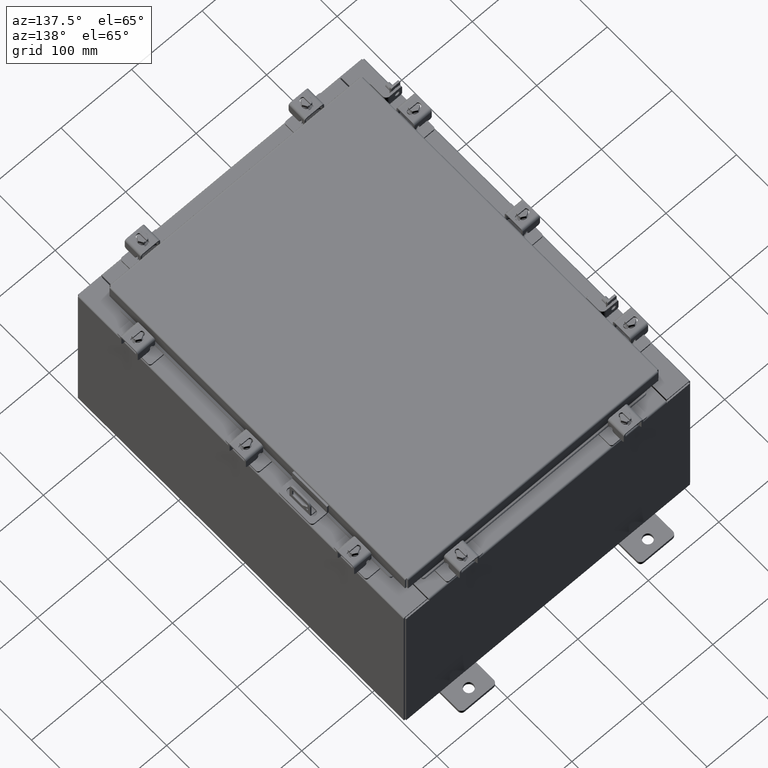
[diagram: clean part render]
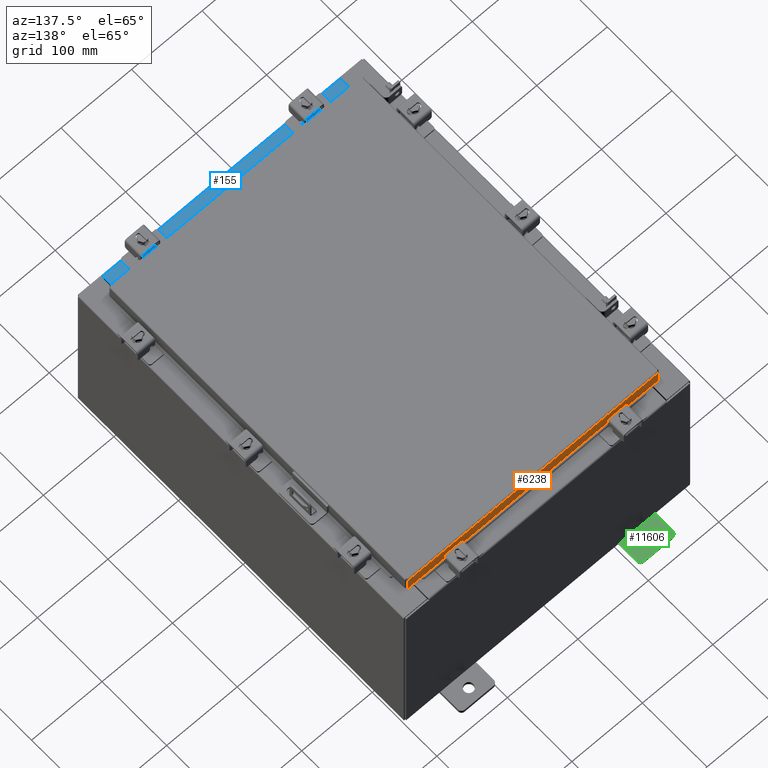
[diagram: same view with three faces highlighted in distinct colors, each labeled with its STEP entity id]
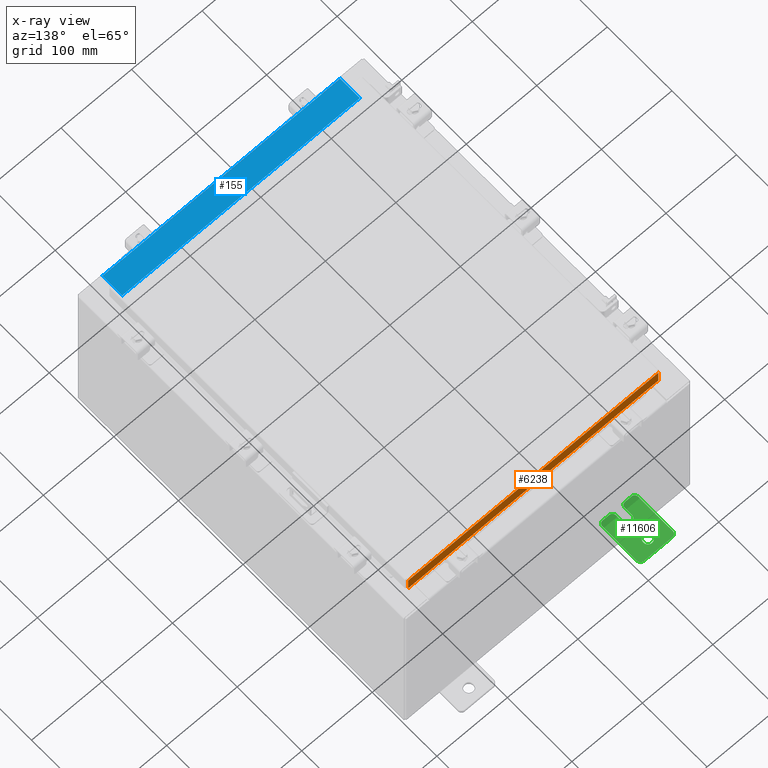
[diagram: x-ray of the same camera — body ghosted, the three highlighted faces saturated]
A machine part, auxiliary view with three faces highlighted in distinct colors.
The next image is the same camera in x-ray (body ghosted, the three faces saturated) — at least one of them is partly hidden behind the body in this view.
Their STEP definitions:

[orange] entity #6238 — the highlighted planar face has unit normal (0, -1, -0).
#434 = VECTOR ( 'NONE', #7094, 39.37007874015748100 ) ;
#801 = CARTESIAN_POINT ( 'NONE',  ( 6.239157864376261700, 9.093999999999999400, -0.8500000000000018700 ) ) ;
#838 = AXIS2_PLACEMENT_3D ( 'NONE', #1003, #4486, #16682 ) ;
#1003 = CARTESIAN_POINT ( 'NONE',  ( -3.215592570974071400E-030, 9.093999999999995900, 2.589571694958335700E-014 ) ) ;
#1096 = CARTESIAN_POINT ( 'NONE',  ( -6.239157864376272400, 9.093999999999999400, -0.8500000000000018700 ) ) ;
#2798 = DIRECTION ( 'NONE',  ( 1.000000000000000000, 4.379057701015054300E-047, 1.254380613084043100E-016 ) ) ;
#2841 = DIRECTION ( 'NONE',  ( 1.000000000000000000, -0.0000000000000000000, -0.0000000000000000000 ) ) ;
#3214 = VERTEX_POINT ( 'NONE', #14335 ) ;
#3254 = ORIENTED_EDGE ( 'NONE', *, *, #15430, .F. ) ;
#3279 = ORIENTED_EDGE ( 'NONE', *, *, #15472, .F. ) ;
#3389 = LINE ( 'NONE', #9120, #16758 ) ;
#3405 = LINE ( 'NONE', #17548, #434 ) ;
#3750 = ORIENTED_EDGE ( 'NONE', *, *, #5069, .T. ) ;
#4486 = DIRECTION ( 'NONE',  ( 3.535949605205710500E-031, -1.000000000000000000, -2.818880942772353800E-015 ) ) ;
#4956 = VERTEX_POINT ( 'NONE', #5385 ) ;
#5069 = EDGE_CURVE ( 'NONE', #4956, #3214, #3389, .T. ) ;
#5385 = CARTESIAN_POINT ( 'NONE',  ( 6.989157864376266200, 9.093999999999995900, -0.08769999999999897300 ) ) ;
#6238 = ADVANCED_FACE ( 'NONE', ( #10400 ), #11423, .F. ) ;
#6287 = ORIENTED_EDGE ( 'NONE', *, *, #21004, .F. ) ;
#6393 = VECTOR ( 'NONE', #2841, 39.37007874015748100 ) ;
#7083 = VERTEX_POINT ( 'NONE', #801 ) ;
#7094 = DIRECTION ( 'NONE',  ( -1.000000000000000000, -1.359980617386811900E-031, -7.719265311286419400E-017 ) ) ;
#7236 = EDGE_CURVE ( 'NONE', #15219, #7083, #11050, .T. ) ;
#7316 = VECTOR ( 'NONE', #9870, 39.37007874015748100 ) ;
#7826 = VERTEX_POINT ( 'NONE', #11280 ) ;
#8109 = CARTESIAN_POINT ( 'NONE',  ( -7.078000000000003800, 9.093999999999999400, -0.8500000000000014200 ) ) ;
#8962 = VECTOR ( 'NONE', #2798, 39.37007874015748100 ) ;
#9120 = CARTESIAN_POINT ( 'NONE',  ( 6.989157864376265300, 9.093999999999995900, 2.589571694958335700E-014 ) ) ;
#9428 = DIRECTION ( 'NONE',  ( -0.0000000000000000000, 2.818880942772353800E-015, -1.000000000000000000 ) ) ;
#9730 = CARTESIAN_POINT ( 'NONE',  ( -7.078000000000003800, 9.093999999999999400, -0.8500000000000014200 ) ) ;
#9870 = DIRECTION ( 'NONE',  ( 1.000000000000000000, 4.379057701015054300E-047, 1.254380613084043100E-016 ) ) ;
#10400 = FACE_OUTER_BOUND ( 'NONE', #17821, .T. ) ;
#11018 = VERTEX_POINT ( 'NONE', #16281 ) ;
#11050 = LINE ( 'NONE', #1096, #6393 ) ;
#11280 = CARTESIAN_POINT ( 'NONE',  ( -6.989157864376273300, 9.093999999999995900, -0.08769999999999951400 ) ) ;
#11423 = PLANE ( 'NONE',  #838 ) ;
#11996 = LINE ( 'NONE', #8109, #7316 ) ;
#12573 = VECTOR ( 'NONE', #9428, 39.37007874015748100 ) ;
#13616 = LINE ( 'NONE', #9730, #8962 ) ;
#13941 = EDGE_CURVE ( 'NONE', #4956, #7826, #3405, .T. ) ;
#14335 = CARTESIAN_POINT ( 'NONE',  ( 6.989157864376266200, 9.093999999999999400, -0.8499999999999996400 ) ) ;
#14429 = ORIENTED_EDGE ( 'NONE', *, *, #7236, .F. ) ;
#15219 = VERTEX_POINT ( 'NONE', #17954 ) ;
#15430 = EDGE_CURVE ( 'NONE', #7083, #3214, #13616, .T. ) ;
#15472 = EDGE_CURVE ( 'NONE', #11018, #15219, #11996, .T. ) ;
#16142 = DIRECTION ( 'NONE',  ( 0.0000000000000000000, 2.818880942772353800E-015, -1.000000000000000000 ) ) ;
#16281 = CARTESIAN_POINT ( 'NONE',  ( -6.989157864376273300, 9.093999999999999400, -0.8500000000000014200 ) ) ;
#16682 = DIRECTION ( 'NONE',  ( 0.0000000000000000000, 2.818880942772353800E-015, -1.000000000000000000 ) ) ;
#16758 = VECTOR ( 'NONE', #16142, 39.37007874015748100 ) ;
#17548 = CARTESIAN_POINT ( 'NONE',  ( -7.078000000000003800, 9.093999999999995900, -0.08770000000000007000 ) ) ;
#17821 = EDGE_LOOP ( 'NONE', ( #18566, #3750, #3254, #14429, #3279, #6287 ) ) ;
#17954 = CARTESIAN_POINT ( 'NONE',  ( -6.239157864376272400, 9.093999999999999400, -0.8500000000000018700 ) ) ;
#18566 = ORIENTED_EDGE ( 'NONE', *, *, #13941, .F. ) ;
#19863 = CARTESIAN_POINT ( 'NONE',  ( -6.989157864376273300, 9.093999999999995900, -0.07469999999999978000 ) ) ;
#21004 = EDGE_CURVE ( 'NONE', #7826, #11018, #21284, .T. ) ;
#21284 = LINE ( 'NONE', #19863, #12573 ) ;

[blue] entity #155 — the highlighted planar face has unit normal (-0, -0, 1).
#155 = ADVANCED_FACE ( 'NONE', ( #11348 ), #6201, .T. ) ;
#651 = ORIENTED_EDGE ( 'NONE', *, *, #20300, .F. ) ;
#809 = EDGE_CURVE ( 'NONE', #7918, #11069, #18936, .T. ) ;
#1267 = LINE ( 'NONE', #19381, #5324 ) ;
#2613 = VECTOR ( 'NONE', #19187, 39.37007874015748100 ) ;
#3638 = EDGE_CURVE ( 'NONE', #7918, #14193, #1267, .T. ) ;
#4241 = EDGE_LOOP ( 'NONE', ( #651, #13561, #12544, #7067 ) ) ;
#4273 = DIRECTION ( 'NONE',  ( 0.0000000000000000000, -1.000000000000000000, 3.566381192773190000E-015 ) ) ;
#5324 = VECTOR ( 'NONE', #5432, 39.37007874015748100 ) ;
#5432 = DIRECTION ( 'NONE',  ( -0.0000000000000000000, -1.000000000000000000, 3.566381192773190000E-015 ) ) ;
#6201 = PLANE ( 'NONE',  #8777 ) ;
#6843 = CARTESIAN_POINT ( 'NONE',  ( 0.0000000000000000000, -0.08770000000000026400, 5.000000000000000900 ) ) ;
#6972 = CARTESIAN_POINT ( 'NONE',  ( 6.637200000000000900, -1.287299999999999900, 5.000000000000005300 ) ) ;
#7067 = ORIENTED_EDGE ( 'NONE', *, *, #809, .T. ) ;
#7918 = VERTEX_POINT ( 'NONE', #18520 ) ;
#8165 = DIRECTION ( 'NONE',  ( -1.000000000000000000, 0.0000000000000000000, 0.0000000000000000000 ) ) ;
#8777 = AXIS2_PLACEMENT_3D ( 'NONE', #22305, #20023, #4273 ) ;
#10215 = VECTOR ( 'NONE', #8165, 39.37007874015748100 ) ;
#11069 = VERTEX_POINT ( 'NONE', #11200 ) ;
#11157 = VERTEX_POINT ( 'NONE', #20183 ) ;
#11200 = CARTESIAN_POINT ( 'NONE',  ( -6.637200000000000000, -0.08770000000000026400, 5.000000000000000900 ) ) ;
#11348 = FACE_OUTER_BOUND ( 'NONE', #4241, .T. ) ;
#11557 = CARTESIAN_POINT ( 'NONE',  ( 6.637200000000000000, -1.287299999999999900, 5.000000000000005300 ) ) ;
#12544 = ORIENTED_EDGE ( 'NONE', *, *, #3638, .F. ) ;
#13219 = EDGE_CURVE ( 'NONE', #14193, #11157, #20599, .T. ) ;
#13561 = ORIENTED_EDGE ( 'NONE', *, *, #13219, .F. ) ;
#14193 = VERTEX_POINT ( 'NONE', #11557 ) ;
#14273 = CARTESIAN_POINT ( 'NONE',  ( -6.637200000000000000, -0.07469999999999973900, 5.000000000000000900 ) ) ;
#15850 = LINE ( 'NONE', #14273, #19950 ) ;
#16020 = DIRECTION ( 'NONE',  ( -0.0000000000000000000, 1.000000000000000000, -3.566381192773190000E-015 ) ) ;
#18520 = CARTESIAN_POINT ( 'NONE',  ( 6.637199999999999100, -0.08769999999999993100, 5.000000000000000900 ) ) ;
#18936 = LINE ( 'NONE', #6843, #10215 ) ;
#19187 = DIRECTION ( 'NONE',  ( -1.000000000000000000, 0.0000000000000000000, 0.0000000000000000000 ) ) ;
#19381 = CARTESIAN_POINT ( 'NONE',  ( 6.637200000000000000, -1.300299999999999800, 5.000000000000005300 ) ) ;
#19950 = VECTOR ( 'NONE', #16020, 39.37007874015748100 ) ;
#20023 = DIRECTION ( 'NONE',  ( 0.0000000000000000000, 3.566381192773190000E-015, 1.000000000000000000 ) ) ;
#20183 = CARTESIAN_POINT ( 'NONE',  ( -6.637200000000000000, -1.287299999999999200, 5.000000000000005300 ) ) ;
#20300 = EDGE_CURVE ( 'NONE', #11157, #11069, #15850, .T. ) ;
#20599 = LINE ( 'NONE', #6972, #2613 ) ;
#22305 = CARTESIAN_POINT ( 'NONE',  ( 0.0000000000000000000, 1.782631094477738200E-014, 5.000000000000000900 ) ) ;

[green] entity #11606 — the highlighted planar face has unit normal (0, 0, 1).
#79 = EDGE_CURVE ( 'NONE', #10777, #11245, #3159, .T. ) ;
#425 = VERTEX_POINT ( 'NONE', #7301 ) ;
#445 = CARTESIAN_POINT ( 'NONE',  ( 0.0000000000000000000, 0.0000000000000000000, 0.0000000000000000000 ) ) ;
#510 = DIRECTION ( 'NONE',  ( -0.0000000000000000000, 0.0000000000000000000, -1.000000000000000000 ) ) ;
#855 = CARTESIAN_POINT ( 'NONE',  ( 0.0000000000000000000, 1.249999999999997600, 0.9999999999999951200 ) ) ;
#983 = CARTESIAN_POINT ( 'NONE',  ( 4.039428427013647300E-016, 0.6249999999999992200, -9.783840404509077400E-018 ) ) ;
#1233 = EDGE_CURVE ( 'NONE', #14345, #15761, #7170, .T. ) ;
#1443 = CARTESIAN_POINT ( 'NONE',  ( 0.0000000000000000000, 1.059999999999993400, -1.000000000000010000 ) ) ;
#1788 = AXIS2_PLACEMENT_3D ( 'NONE', #8727, #17283, #11649 ) ;
#2181 = AXIS2_PLACEMENT_3D ( 'NONE', #17997, #7532, #19738 ) ;
#2714 = DIRECTION ( 'NONE',  ( -5.163192708025533800E-017, 0.0000000000000000000, -1.000000000000000000 ) ) ;
#2785 = VERTEX_POINT ( 'NONE', #1443 ) ;
#2888 = ORIENTED_EDGE ( 'NONE', *, *, #20736, .T. ) ;
#2898 = VERTEX_POINT ( 'NONE', #17342 ) ;
#3033 = VECTOR ( 'NONE', #10494, 39.37007874015748100 ) ;
#3127 = EDGE_CURVE ( 'NONE', #11245, #10777, #3851, .T. ) ;
#3159 = CIRCLE ( 'NONE', #1788, 0.2499999999999999200 ) ;
#3222 = FACE_BOUND ( 'NONE', #16538, .T. ) ;
#3399 = EDGE_CURVE ( 'NONE', #12219, #17879, #8724, .T. ) ;
#3531 = CARTESIAN_POINT ( 'NONE',  ( 0.0000000000000000000, 1.249999999999994200, -1.000000000000010400 ) ) ;
#3584 = LINE ( 'NONE', #20042, #17487 ) ;
#3686 = CARTESIAN_POINT ( 'NONE',  ( 4.780733988912460100E-016, -0.6249999999999993300, -0.2499999999999998600 ) ) ;
#3851 = CIRCLE ( 'NONE', #10251, 0.2499999999999999200 ) ;
#3942 = EDGE_CURVE ( 'NONE', #7408, #5588, #18452, .T. ) ;
#4078 = DIRECTION ( 'NONE',  ( 1.000000000000000000, 0.0000000000000000000, -0.0000000000000000000 ) ) ;
#4282 = AXIS2_PLACEMENT_3D ( 'NONE', #5181, #17377, #6921 ) ;
#4391 = CIRCLE ( 'NONE', #13681, 0.1900000000000011100 ) ;
#4477 = CIRCLE ( 'NONE', #17003, 0.1900000000000011100 ) ;
#4867 = ORIENTED_EDGE ( 'NONE', *, *, #4989, .T. ) ;
#4989 = EDGE_CURVE ( 'NONE', #11095, #12219, #4477, .T. ) ;
#5181 = CARTESIAN_POINT ( 'NONE',  ( 0.0000000000000000000, 1.059999999999996300, 0.8099999999999938400 ) ) ;
#5236 = CARTESIAN_POINT ( 'NONE',  ( 4.780733988912460100E-016, -0.6249999999999993300, -0.2499999999999993900 ) ) ;
#5538 = CARTESIAN_POINT ( 'NONE',  ( 0.0000000000000000000, -1.060000000000003400, -0.4400000000000005000 ) ) ;
#5588 = VERTEX_POINT ( 'NONE', #15012 ) ;
#5754 = DIRECTION ( 'NONE',  ( 1.000000000000000000, 0.0000000000000000000, -0.0000000000000000000 ) ) ;
#5830 = LINE ( 'NONE', #855, #15106 ) ;
#6068 = CARTESIAN_POINT ( 'NONE',  ( 0.0000000000000000000, -1.250000000000002200, 0.9999999999999992200 ) ) ;
#6088 = CARTESIAN_POINT ( 'NONE',  ( 0.0000000000000000000, -1.250000000000002200, 0.9999999999999992200 ) ) ;
#6196 = DIRECTION ( 'NONE',  ( 1.000000000000000000, 0.0000000000000000000, -0.0000000000000000000 ) ) ;
#6306 = ORIENTED_EDGE ( 'NONE', *, *, #3399, .T. ) ;
#6560 = LINE ( 'NONE', #3531, #20497 ) ;
#6921 = DIRECTION ( 'NONE',  ( 0.0000000000000000000, 0.0000000000000000000, -1.000000000000000000 ) ) ;
#7170 = CIRCLE ( 'NONE', #13241, 0.2499999999999999200 ) ;
#7287 = DIRECTION ( 'NONE',  ( 0.0000000000000000000, 0.0000000000000000000, -1.000000000000000000 ) ) ;
#7301 = CARTESIAN_POINT ( 'NONE',  ( 0.0000000000000000000, -1.250000000000003100, 0.4400000000000020000 ) ) ;
#7408 = VERTEX_POINT ( 'NONE', #11976 ) ;
#7505 = ORIENTED_EDGE ( 'NONE', *, *, #20296, .T. ) ;
#7532 = DIRECTION ( 'NONE',  ( 1.000000000000000000, 0.0000000000000000000, -0.0000000000000000000 ) ) ;
#7652 = LINE ( 'NONE', #5236, #3033 ) ;
#7693 = DIRECTION ( 'NONE',  ( 0.0000000000000000000, -1.639108796198553600E-015, -1.000000000000000000 ) ) ;
#7820 = EDGE_CURVE ( 'NONE', #5588, #14866, #5830, .T. ) ;
#8164 = ORIENTED_EDGE ( 'NONE', *, *, #19327, .T. ) ;
#8521 = LINE ( 'NONE', #6068, #12627 ) ;
#8524 = VECTOR ( 'NONE', #21947, 39.37007874015748100 ) ;
#8553 = CARTESIAN_POINT ( 'NONE',  ( 0.0000000000000000000, -1.060000000000004500, -1.000000000000006400 ) ) ;
#8724 = LINE ( 'NONE', #6088, #16936 ) ;
#8727 = CARTESIAN_POINT ( 'NONE',  ( 4.039428427013647300E-016, 0.6249999999999992200, -9.783840404509077400E-018 ) ) ;
#8739 = EDGE_CURVE ( 'NONE', #2898, #425, #8521, .T. ) ;
#9250 = ORIENTED_EDGE ( 'NONE', *, *, #16401, .T. ) ;
#9556 = AXIS2_PLACEMENT_3D ( 'NONE', #445, #10930, #510 ) ;
#9562 = ORIENTED_EDGE ( 'NONE', *, *, #14143, .T. ) ;
#9596 = DIRECTION ( 'NONE',  ( 0.0000000000000000000, 1.000000000000000000, -1.639108796198558100E-015 ) ) ;
#10251 = AXIS2_PLACEMENT_3D ( 'NONE', #983, #13170, #2714 ) ;
#10395 = EDGE_LOOP ( 'NONE', ( #19487, #9250, #19914, #14546, #8164, #11747, #2888, #4867, #6306, #9562, #10477, #21293, #7505, #12696 ) ) ;
#10477 = ORIENTED_EDGE ( 'NONE', *, *, #10495, .T. ) ;
#10494 = DIRECTION ( 'NONE',  ( -6.556435184794182400E-016, -1.000000000000000000, -1.639108796198545600E-016 ) ) ;
#10495 = EDGE_CURVE ( 'NONE', #20199, #2785, #3584, .T. ) ;
#10777 = VERTEX_POINT ( 'NONE', #15743 ) ;
#10930 = DIRECTION ( 'NONE',  ( 1.000000000000000000, 0.0000000000000000000, -0.0000000000000000000 ) ) ;
#11095 = VERTEX_POINT ( 'NONE', #14747 ) ;
#11245 = VERTEX_POINT ( 'NONE', #16895 ) ;
#11355 = DIRECTION ( 'NONE',  ( -1.000000000000000000, 6.523827964459549700E-016, 5.163192708025532000E-017 ) ) ;
#11606 = ADVANCED_FACE ( 'NONE', ( #3222, #12491 ), #16104, .T. ) ;
#11649 = DIRECTION ( 'NONE',  ( -5.163192708025533800E-017, 0.0000000000000000000, -1.000000000000000000 ) ) ;
#11747 = ORIENTED_EDGE ( 'NONE', *, *, #1233, .T. ) ;
#11976 = CARTESIAN_POINT ( 'NONE',  ( 0.0000000000000000000, 1.249999999999997300, 0.8099999999999935000 ) ) ;
#12219 = VERTEX_POINT ( 'NONE', #21110 ) ;
#12274 = CIRCLE ( 'NONE', #20693, 0.1900000000000011400 ) ;
#12491 = FACE_OUTER_BOUND ( 'NONE', #10395, .T. ) ;
#12574 = DIRECTION ( 'NONE',  ( -6.523827964459551700E-016, -1.000000000000000000, 0.0000000000000000000 ) ) ;
#12627 = VECTOR ( 'NONE', #14754, 39.37007874015748100 ) ;
#12696 = ORIENTED_EDGE ( 'NONE', *, *, #3942, .T. ) ;
#13011 = CARTESIAN_POINT ( 'NONE',  ( 0.0000000000000000000, 1.249999999999994700, -0.8100000000000092700 ) ) ;
#13038 = DIRECTION ( 'NONE',  ( 0.0000000000000000000, -1.000000000000000000, 1.639108796198558100E-015 ) ) ;
#13170 = DIRECTION ( 'NONE',  ( 1.000000000000000000, -0.0000000000000000000, -5.163192708025532000E-017 ) ) ;
#13200 = LINE ( 'NONE', #14928, #8524 ) ;
#13241 = AXIS2_PLACEMENT_3D ( 'NONE', #14456, #11355, #12574 ) ;
#13272 = CARTESIAN_POINT ( 'NONE',  ( 0.0000000000000000000, -1.060000000000001200, 0.9999999999999988900 ) ) ;
#13279 = CARTESIAN_POINT ( 'NONE',  ( 1.928684683526972300E-016, -1.060000000000002100, 0.2500000000000005000 ) ) ;
#13681 = AXIS2_PLACEMENT_3D ( 'NONE', #16211, #5754, #17963 ) ;
#14112 = VERTEX_POINT ( 'NONE', #13011 ) ;
#14143 = EDGE_CURVE ( 'NONE', #17879, #20199, #18125, .T. ) ;
#14345 = VERTEX_POINT ( 'NONE', #17095 ) ;
#14456 = CARTESIAN_POINT ( 'NONE',  ( 4.780733988912460100E-016, -0.6249999999999993300, 5.858939755051854500E-017 ) ) ;
#14512 = CARTESIAN_POINT ( 'NONE',  ( 0.0000000000000000000, -1.060000000000002100, 0.4400000000000016700 ) ) ;
#14546 = ORIENTED_EDGE ( 'NONE', *, *, #15224, .T. ) ;
#14747 = CARTESIAN_POINT ( 'NONE',  ( 1.928684683526964400E-016, -1.060000000000003400, -0.2499999999999994400 ) ) ;
#14754 = DIRECTION ( 'NONE',  ( 0.0000000000000000000, -1.639108796198553600E-015, -1.000000000000000000 ) ) ;
#14866 = VERTEX_POINT ( 'NONE', #13272 ) ;
#14928 = CARTESIAN_POINT ( 'NONE',  ( 6.829619984160658000E-017, -1.250000000000003800, 0.2500000000000005000 ) ) ;
#15012 = CARTESIAN_POINT ( 'NONE',  ( 0.0000000000000000000, 1.059999999999996500, 0.9999999999999953400 ) ) ;
#15106 = VECTOR ( 'NONE', #13038, 39.37007874015748100 ) ;
#15224 = EDGE_CURVE ( 'NONE', #425, #19340, #12274, .T. ) ;
#15743 = CARTESIAN_POINT ( 'NONE',  ( 4.168508244714285900E-016, 0.6249999999999992200, 0.2499999999999999200 ) ) ;
#15761 = VERTEX_POINT ( 'NONE', #3686 ) ;
#16104 = PLANE ( 'NONE',  #9556 ) ;
#16211 = CARTESIAN_POINT ( 'NONE',  ( 0.0000000000000000000, 1.059999999999993600, -0.8100000000000089400 ) ) ;
#16271 = DIRECTION ( 'NONE',  ( 0.0000000000000000000, 0.0000000000000000000, -1.000000000000000000 ) ) ;
#16401 = EDGE_CURVE ( 'NONE', #14866, #2898, #20174, .T. ) ;
#16538 = EDGE_LOOP ( 'NONE', ( #16768, #21260 ) ) ;
#16656 = CARTESIAN_POINT ( 'NONE',  ( 0.0000000000000000000, -1.060000000000004100, -0.8100000000000050500 ) ) ;
#16768 = ORIENTED_EDGE ( 'NONE', *, *, #3127, .F. ) ;
#16895 = CARTESIAN_POINT ( 'NONE',  ( 3.910348609313009100E-016, 0.6249999999999992200, -0.2499999999999999200 ) ) ;
#16936 = VECTOR ( 'NONE', #7693, 39.37007874015748100 ) ;
#17003 = AXIS2_PLACEMENT_3D ( 'NONE', #5538, #17740, #7287 ) ;
#17095 = CARTESIAN_POINT ( 'NONE',  ( 0.0000000000000000000, -0.6249999999999992200, 0.2500000000000005000 ) ) ;
#17283 = DIRECTION ( 'NONE',  ( 1.000000000000000000, -0.0000000000000000000, -5.163192708025532000E-017 ) ) ;
#17342 = CARTESIAN_POINT ( 'NONE',  ( 0.0000000000000000000, -1.250000000000002400, 0.8099999999999980500 ) ) ;
#17377 = DIRECTION ( 'NONE',  ( 1.000000000000000000, 0.0000000000000000000, -0.0000000000000000000 ) ) ;
#17487 = VECTOR ( 'NONE', #9596, 39.37007874015748100 ) ;
#17694 = DIRECTION ( 'NONE',  ( 0.0000000000000000000, 1.639108796198553600E-015, 1.000000000000000000 ) ) ;
#17740 = DIRECTION ( 'NONE',  ( 1.000000000000000000, 0.0000000000000000000, -0.0000000000000000000 ) ) ;
#17807 = CARTESIAN_POINT ( 'NONE',  ( 0.0000000000000000000, -1.250000000000005300, -0.8100000000000047200 ) ) ;
#17879 = VERTEX_POINT ( 'NONE', #17807 ) ;
#17963 = DIRECTION ( 'NONE',  ( 0.0000000000000000000, 0.0000000000000000000, -1.000000000000000000 ) ) ;
#17997 = CARTESIAN_POINT ( 'NONE',  ( 0.0000000000000000000, -1.060000000000001600, 0.8099999999999978300 ) ) ;
#18125 = CIRCLE ( 'NONE', #21270, 0.1900000000000011100 ) ;
#18432 = DIRECTION ( 'NONE',  ( 0.0000000000000000000, 0.0000000000000000000, -1.000000000000000000 ) ) ;
#18452 = CIRCLE ( 'NONE', #4282, 0.1900000000000011100 ) ;
#19327 = EDGE_CURVE ( 'NONE', #19340, #14345, #13200, .T. ) ;
#19340 = VERTEX_POINT ( 'NONE', #13279 ) ;
#19487 = ORIENTED_EDGE ( 'NONE', *, *, #7820, .T. ) ;
#19738 = DIRECTION ( 'NONE',  ( 0.0000000000000000000, 0.0000000000000000000, -1.000000000000000000 ) ) ;
#19914 = ORIENTED_EDGE ( 'NONE', *, *, #8739, .T. ) ;
#20042 = CARTESIAN_POINT ( 'NONE',  ( 0.0000000000000000000, -1.250000000000005600, -1.000000000000006200 ) ) ;
#20174 = CIRCLE ( 'NONE', #2181, 0.1900000000000011100 ) ;
#20199 = VERTEX_POINT ( 'NONE', #8553 ) ;
#20296 = EDGE_CURVE ( 'NONE', #14112, #7408, #6560, .T. ) ;
#20497 = VECTOR ( 'NONE', #17694, 39.37007874015748100 ) ;
#20693 = AXIS2_PLACEMENT_3D ( 'NONE', #14512, #4078, #16271 ) ;
#20736 = EDGE_CURVE ( 'NONE', #15761, #11095, #7652, .T. ) ;
#20937 = EDGE_CURVE ( 'NONE', #2785, #14112, #4391, .T. ) ;
#21110 = CARTESIAN_POINT ( 'NONE',  ( 0.0000000000000000000, -1.250000000000004700, -0.4400000000000002200 ) ) ;
#21260 = ORIENTED_EDGE ( 'NONE', *, *, #79, .F. ) ;
#21270 = AXIS2_PLACEMENT_3D ( 'NONE', #16656, #6196, #18432 ) ;
#21293 = ORIENTED_EDGE ( 'NONE', *, *, #20937, .T. ) ;
#21947 = DIRECTION ( 'NONE',  ( 6.556435184794182400E-016, 1.000000000000000000, 0.0000000000000000000 ) ) ;